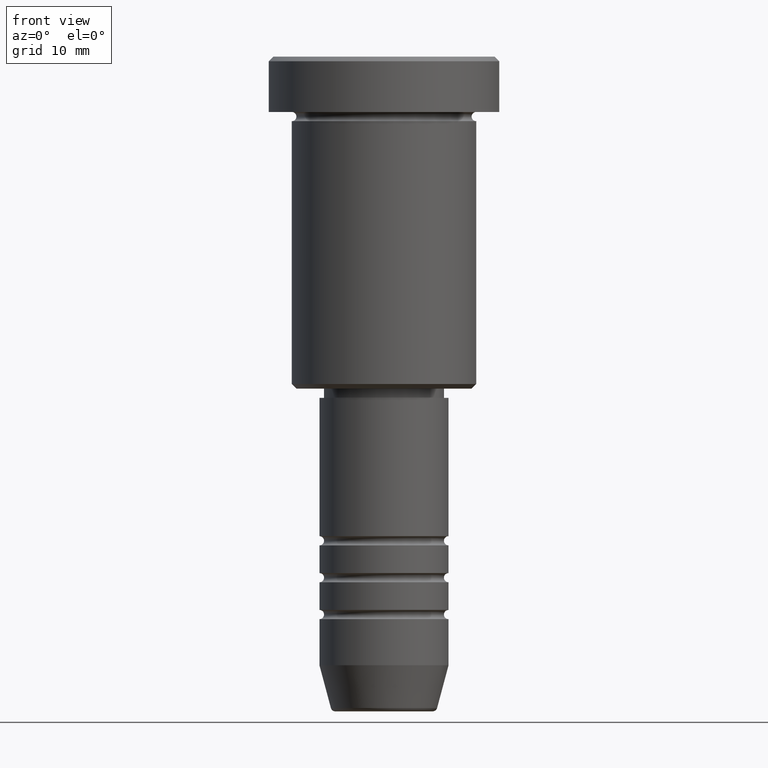
[diagram: clean part render]
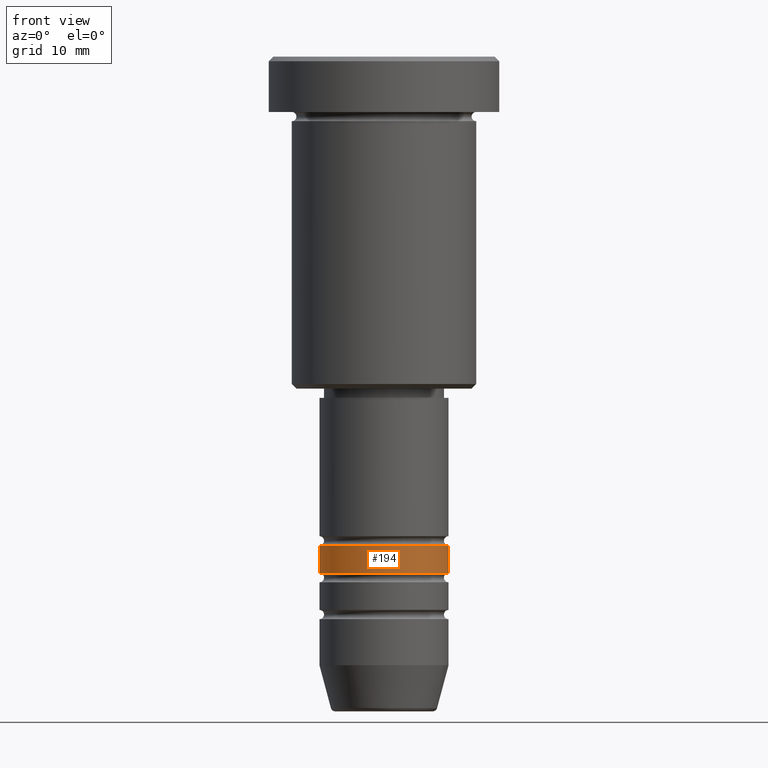
[diagram: same view with one face highlighted and labeled with its STEP entity id]
A machine part, front view. The second image highlights one B-rep face of the part: STEP entity #194.
In plain terms, the highlighted cylindrical surface (partial cylindrical patch) has radius 7 mm, axis along (-0, -0, 1).
Its self-contained STEP definition (entity closure, byte-faithful):
#34 = VECTOR ( 'NONE', #104, 1000.000000000000000 ) ;
#40 = FACE_OUTER_BOUND ( 'NONE', #1006, .T. ) ;
#49 = CIRCLE ( 'NONE', #807, 7.000000000000000000 ) ;
#104 = DIRECTION ( 'NONE',  ( -0.000000000000000000, -0.000000000000000000, 1.000000000000000000 ) ) ;
#112 = DIRECTION ( 'NONE',  ( -0.000000000000000000, -0.000000000000000000, 1.000000000000000000 ) ) ;
#134 = EDGE_CURVE ( 'NONE', #871, #900, #49, .T. ) ;
#173 = DIRECTION ( 'NONE',  ( -0.000000000000000000, -0.000000000000000000, 1.000000000000000000 ) ) ;
#194 = ADVANCED_FACE ( 'NONE', ( #40 ), #949, .T. ) ;
#200 = LINE ( 'NONE', #1017, #34 ) ;
#277 = CARTESIAN_POINT ( 'NONE',  ( 0.000000000000000000, 0.000000000000000000, -52.99999999999989342 ) ) ;
#289 = ORIENTED_EDGE ( 'NONE', *, *, #134, .F. ) ;
#338 = CARTESIAN_POINT ( 'NONE',  ( 0.000000000000000000, 0.000000000000000000, -55.99999999999990763 ) ) ;
#357 = LINE ( 'NONE', #979, #932 ) ;
#389 = ORIENTED_EDGE ( 'NONE', *, *, #678, .F. ) ;
#438 = CARTESIAN_POINT ( 'NONE',  ( -7.000000000000002665, 8.572527594031475162E-16, -55.99999999999990763 ) ) ;
#459 = CIRCLE ( 'NONE', #813, 7.000000000000002665 ) ;
#516 = AXIS2_PLACEMENT_3D ( 'NONE', #785, #765, #599 ) ;
#526 = DIRECTION ( 'NONE',  ( 1.000000000000000000, 0.000000000000000000, 0.000000000000000000 ) ) ;
#599 = DIRECTION ( 'NONE',  ( 1.000000000000000000, 0.000000000000000000, 0.000000000000000000 ) ) ;
#638 = CARTESIAN_POINT ( 'NONE',  ( 7.000000000000000000, 0.000000000000000000, -52.99999999999989342 ) ) ;
#659 = ORIENTED_EDGE ( 'NONE', *, *, #1037, .T. ) ;
#678 = EDGE_CURVE ( 'NONE', #1059, #871, #200, .T. ) ;
#705 = DIRECTION ( 'NONE',  ( -0.000000000000000000, -0.000000000000000000, 1.000000000000000000 ) ) ;
#724 = CARTESIAN_POINT ( 'NONE',  ( 7.000000000000002665, 0.000000000000000000, -55.99999999999990763 ) ) ;
#765 = DIRECTION ( 'NONE',  ( -0.000000000000000000, -0.000000000000000000, 1.000000000000000000 ) ) ;
#775 = CARTESIAN_POINT ( 'NONE',  ( -7.000000000000000000, 8.572527594031473190E-16, -52.99999999999989342 ) ) ;
#785 = CARTESIAN_POINT ( 'NONE',  ( 0.000000000000000000, 0.000000000000000000, 0.000000000000000000 ) ) ;
#807 = AXIS2_PLACEMENT_3D ( 'NONE', #277, #112, #1016 ) ;
#813 = AXIS2_PLACEMENT_3D ( 'NONE', #338, #173, #526 ) ;
#871 = VERTEX_POINT ( 'NONE', #775 ) ;
#900 = VERTEX_POINT ( 'NONE', #638 ) ;
#906 = ORIENTED_EDGE ( 'NONE', *, *, #1032, .T. ) ;
#932 = VECTOR ( 'NONE', #705, 1000.000000000000000 ) ;
#949 = CYLINDRICAL_SURFACE ( 'NONE', #516, 7.000000000000000888 ) ;
#979 = CARTESIAN_POINT ( 'NONE',  ( 7.000000000000000888, 0.000000000000000000, 0.000000000000000000 ) ) ;
#982 = VERTEX_POINT ( 'NONE', #724 ) ;
#1006 = EDGE_LOOP ( 'NONE', ( #389, #659, #906, #289 ) ) ;
#1016 = DIRECTION ( 'NONE',  ( 1.000000000000000000, 0.000000000000000000, 0.000000000000000000 ) ) ;
#1017 = CARTESIAN_POINT ( 'NONE',  ( -7.000000000000000888, 8.572527594031474176E-16, 0.000000000000000000 ) ) ;
#1032 = EDGE_CURVE ( 'NONE', #982, #900, #357, .T. ) ;
#1037 = EDGE_CURVE ( 'NONE', #1059, #982, #459, .T. ) ;
#1059 = VERTEX_POINT ( 'NONE', #438 ) ;